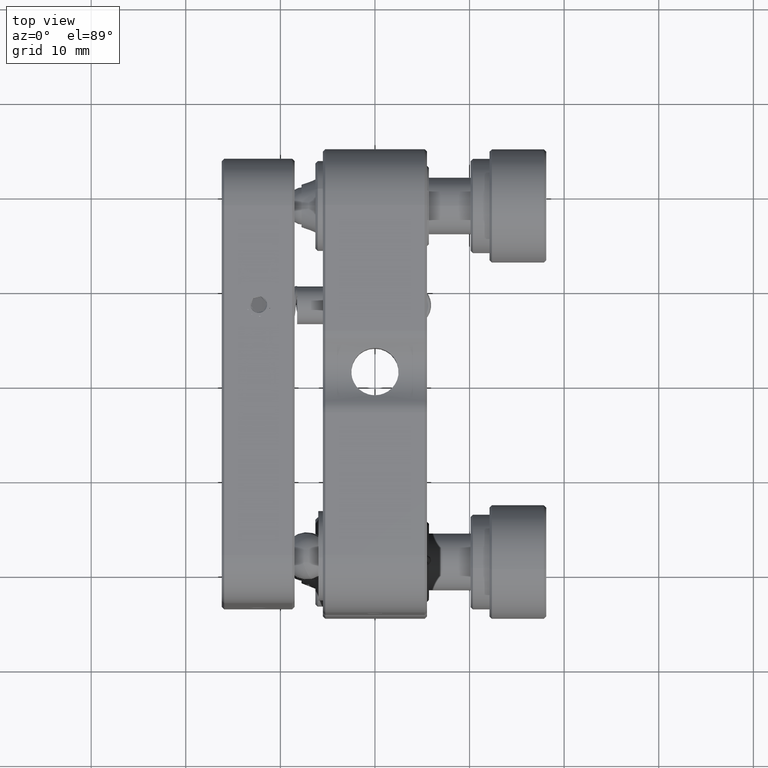
[diagram: clean part render]
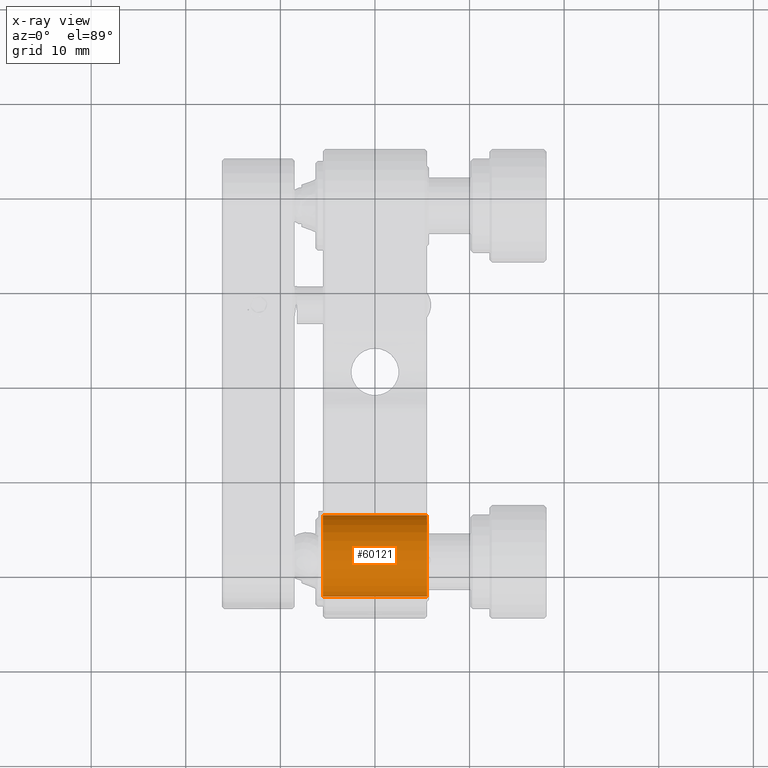
[diagram: x-ray — body ghosted, one internal face saturated and labeled with its STEP entity id]
A machine part, top view, then the same camera in x-ray: the body is ghosted and one INTERNAL B-rep face — a face not visible from any outside direction — is saturated and labeled: STEP entity #60121.
In plain terms, the highlighted cylindrical surface (partial cylindrical patch) has radius 4.3 mm, axis along (1, 0, -0).
Its self-contained STEP definition (entity closure, byte-faithful):
#1077 = VERTEX_POINT ( 'NONE', #25624 ) ;
#1714 = DIRECTION ( 'NONE',  ( 1.000000000000000000, 1.554312234475219157E-15, -1.307442296722197601E-31 ) ) ;
#2561 = DIRECTION ( 'NONE',  ( -1.613696256722611948E-15, -1.000000000000000000, 0.0000000000000000000 ) ) ;
#4708 = DIRECTION ( 'NONE',  ( 1.000000000000000000, 1.554312234475219157E-15, -1.307442296722197601E-31 ) ) ;
#4906 = DIRECTION ( 'NONE',  ( 1.000000000000000000, 1.554312234475219157E-15, -1.307442296722197601E-31 ) ) ;
#5576 = LINE ( 'NONE', #10905, #60241 ) ;
#5990 = ORIENTED_EDGE ( 'NONE', *, *, #36770, .F. ) ;
#6725 = DIRECTION ( 'NONE',  ( -1.613696256722611948E-15, -1.000000000000000000, 0.0000000000000000000 ) ) ;
#7756 = EDGE_CURVE ( 'NONE', #58030, #1077, #23848, .T. ) ;
#8137 = AXIS2_PLACEMENT_3D ( 'NONE', #12211, #17421, #2561 ) ;
#10329 = ORIENTED_EDGE ( 'NONE', *, *, #7756, .T. ) ;
#10592 = ORIENTED_EDGE ( 'NONE', *, *, #36699, .F. ) ;
#10905 = CARTESIAN_POINT ( 'NONE',  ( -5.500000000000031086, -22.80000000000000782, 18.49999999999990052 ) ) ;
#12211 = CARTESIAN_POINT ( 'NONE',  ( -5.500000000000023981, -18.50000000000001066, 18.49999999999990052 ) ) ;
#13080 = CARTESIAN_POINT ( 'NONE',  ( -5.500000000000031086, -14.20000000000000995, 18.49999999999990052 ) ) ;
#16983 = CARTESIAN_POINT ( 'NONE',  ( -5.500000000000023981, -18.50000000000001066, 18.49999999999990052 ) ) ;
#17421 = DIRECTION ( 'NONE',  ( 1.000000000000000000, 1.554312234475219157E-15, -1.307442296722197601E-31 ) ) ;
#17509 = CARTESIAN_POINT ( 'NONE',  ( 5.499999999999968026, -22.79999999999995808, 18.49999999999990052 ) ) ;
#18774 = VERTEX_POINT ( 'NONE', #17509 ) ;
#19549 = CARTESIAN_POINT ( 'NONE',  ( 5.499999999999975131, -18.49999999999996092, 18.49999999999990052 ) ) ;
#23848 = LINE ( 'NONE', #62301, #25434 ) ;
#25229 = DIRECTION ( 'NONE',  ( -1.613696256722611948E-15, -1.000000000000000000, 0.0000000000000000000 ) ) ;
#25434 = VECTOR ( 'NONE', #4708, 1000.000000000000000 ) ;
#25624 = CARTESIAN_POINT ( 'NONE',  ( 5.499999999999968026, -14.19999999999996021, 18.49999999999990052 ) ) ;
#25869 = EDGE_CURVE ( 'NONE', #1077, #18774, #34342, .T. ) ;
#29233 = FACE_OUTER_BOUND ( 'NONE', #55260, .T. ) ;
#29822 = CIRCLE ( 'NONE', #43045, 4.299999999999998046 ) ;
#34342 = CIRCLE ( 'NONE', #63158, 4.299999999999998046 ) ;
#36146 = CYLINDRICAL_SURFACE ( 'NONE', #8137, 4.299999999999998046 ) ;
#36386 = ORIENTED_EDGE ( 'NONE', *, *, #25869, .T. ) ;
#36699 = EDGE_CURVE ( 'NONE', #48823, #18774, #5576, .T. ) ;
#36770 = EDGE_CURVE ( 'NONE', #58030, #48823, #29822, .T. ) ;
#43045 = AXIS2_PLACEMENT_3D ( 'NONE', #16983, #1714, #6725 ) ;
#48823 = VERTEX_POINT ( 'NONE', #54979 ) ;
#50384 = DIRECTION ( 'NONE',  ( 1.000000000000000000, 1.554312234475219157E-15, -1.307442296722197601E-31 ) ) ;
#54979 = CARTESIAN_POINT ( 'NONE',  ( -5.500000000000031086, -22.80000000000000782, 18.49999999999990052 ) ) ;
#55260 = EDGE_LOOP ( 'NONE', ( #5990, #10329, #36386, #10592 ) ) ;
#58030 = VERTEX_POINT ( 'NONE', #13080 ) ;
#60121 = ADVANCED_FACE ( 'NONE', ( #29233 ), #36146, .F. ) ;
#60241 = VECTOR ( 'NONE', #50384, 1000.000000000000000 ) ;
#62301 = CARTESIAN_POINT ( 'NONE',  ( -5.500000000000016875, -14.20000000000000995, 18.49999999999990052 ) ) ;
#63158 = AXIS2_PLACEMENT_3D ( 'NONE', #19549, #4906, #25229 ) ;